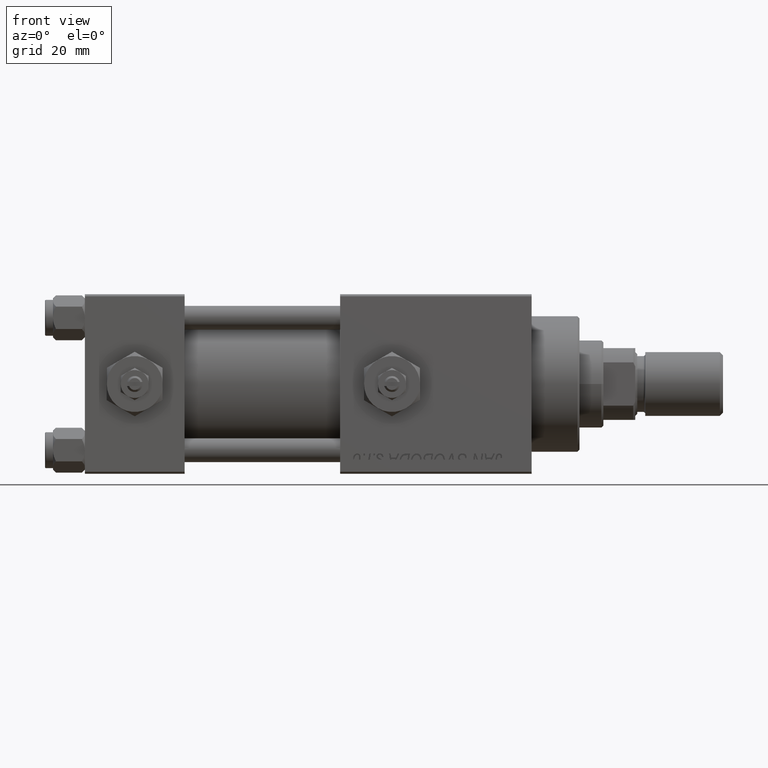
[diagram: clean part render]
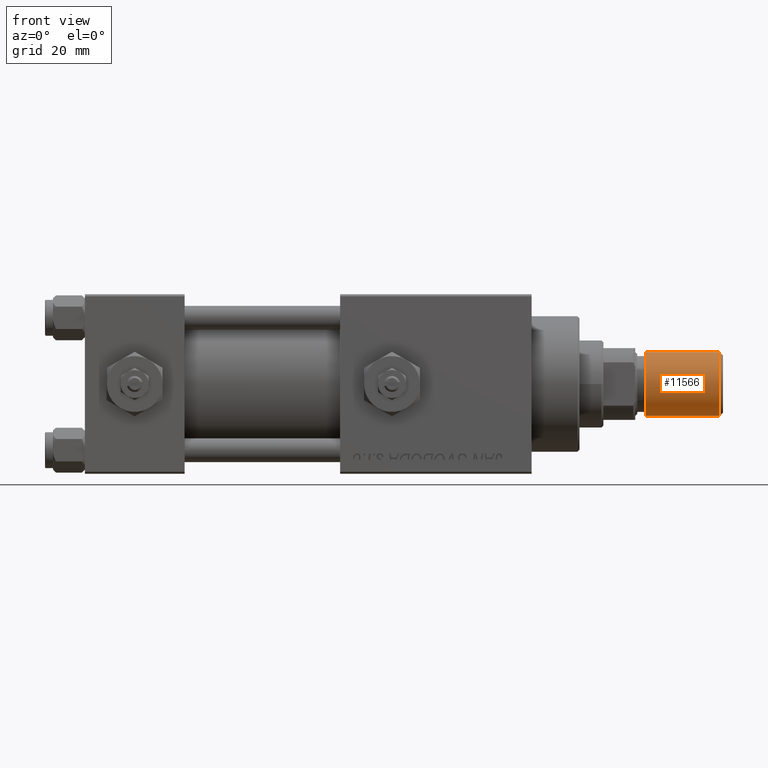
[diagram: same view with one face highlighted and labeled with its STEP entity id]
A machine part, front view. The second image highlights one B-rep face of the part: STEP entity #11566.
In plain terms, the highlighted cylindrical surface (edge-blend (fillet) strip) has radius 8 mm, axis along (1, -0, -0).
Its self-contained STEP definition (entity closure, byte-faithful):
#2888 = AXIS2_PLACEMENT_3D ( 'NONE', #5185, #9425, #37666 ) ;
#4989 = VECTOR ( 'NONE', #18092, 1000.000000000000000 ) ;
#5185 = CARTESIAN_POINT ( 'NONE',  ( 0.000000000000000000, 0.000000000000000000, 19.50000000000000000 ) ) ;
#5329 = LINE ( 'NONE', #10097, #4989 ) ;
#6945 = DIRECTION ( 'NONE',  ( 1.000000000000000000, 0.000000000000000000, 0.000000000000000000 ) ) ;
#8295 = DIRECTION ( 'NONE',  ( 1.000000000000000000, 0.000000000000000000, 0.000000000000000000 ) ) ;
#8388 = FACE_OUTER_BOUND ( 'NONE', #14566, .T. ) ;
#9425 = DIRECTION ( 'NONE',  ( -0.000000000000000000, -0.000000000000000000, -1.000000000000000000 ) ) ;
#10097 = CARTESIAN_POINT ( 'NONE',  ( -8.000000000000000000, 0.000000000000000000, 19.50000000000000000 ) ) ;
#11566 = ADVANCED_FACE ( 'NONE', ( #8388 ), #45125, .T. ) ;
#12390 = CARTESIAN_POINT ( 'NONE',  ( -8.000000000000000000, 0.000000000000000000, 19.50000000000000000 ) ) ;
#12425 = CARTESIAN_POINT ( 'NONE',  ( 8.000000000000000000, 9.797174393178825657E-16, 19.50000000000000000 ) ) ;
#12466 = VERTEX_POINT ( 'NONE', #12390 ) ;
#13705 = CIRCLE ( 'NONE', #51131, 8.000000000000000000 ) ;
#14566 = EDGE_LOOP ( 'NONE', ( #46842, #22595, #25005, #17203 ) ) ;
#17203 = ORIENTED_EDGE ( 'NONE', *, *, #20710, .T. ) ;
#18092 = DIRECTION ( 'NONE',  ( -0.000000000000000000, -0.000000000000000000, -1.000000000000000000 ) ) ;
#18177 = EDGE_CURVE ( 'NONE', #21896, #32057, #23657, .T. ) ;
#19384 = DIRECTION ( 'NONE',  ( -0.000000000000000000, -0.000000000000000000, -1.000000000000000000 ) ) ;
#19512 = CARTESIAN_POINT ( 'NONE',  ( 0.000000000000000000, 0.000000000000000000, 19.50000000000000000 ) ) ;
#20710 = EDGE_CURVE ( 'NONE', #48901, #32057, #48328, .T. ) ;
#21896 = VERTEX_POINT ( 'NONE', #30714 ) ;
#22420 = EDGE_CURVE ( 'NONE', #12466, #48901, #5329, .T. ) ;
#22595 = ORIENTED_EDGE ( 'NONE', *, *, #28425, .F. ) ;
#23657 = LINE ( 'NONE', #12425, #51599 ) ;
#24492 = CARTESIAN_POINT ( 'NONE',  ( 8.000000000000000000, 9.797174393178825657E-16, 0.8000000000000090372 ) ) ;
#25005 = ORIENTED_EDGE ( 'NONE', *, *, #22420, .T. ) ;
#27185 = CARTESIAN_POINT ( 'NONE',  ( 0.000000000000000000, 0.000000000000000000, 0.8000000000000090372 ) ) ;
#28425 = EDGE_CURVE ( 'NONE', #12466, #21896, #13705, .T. ) ;
#30714 = CARTESIAN_POINT ( 'NONE',  ( 8.000000000000000000, 9.797174393178825657E-16, 19.50000000000000000 ) ) ;
#32057 = VERTEX_POINT ( 'NONE', #24492 ) ;
#32148 = AXIS2_PLACEMENT_3D ( 'NONE', #27185, #47680, #6945 ) ;
#32879 = CARTESIAN_POINT ( 'NONE',  ( -8.000000000000000000, 0.000000000000000000, 0.8000000000000090372 ) ) ;
#37666 = DIRECTION ( 'NONE',  ( -1.000000000000000000, 0.000000000000000000, 0.000000000000000000 ) ) ;
#44770 = DIRECTION ( 'NONE',  ( 0.000000000000000000, 0.000000000000000000, 1.000000000000000000 ) ) ;
#45125 = CYLINDRICAL_SURFACE ( 'NONE', #2888, 8.000000000000000000 ) ;
#46842 = ORIENTED_EDGE ( 'NONE', *, *, #18177, .F. ) ;
#47680 = DIRECTION ( 'NONE',  ( -0.000000000000000000, -0.000000000000000000, 1.000000000000000000 ) ) ;
#48328 = CIRCLE ( 'NONE', #32148, 8.000000000000000000 ) ;
#48901 = VERTEX_POINT ( 'NONE', #32879 ) ;
#51131 = AXIS2_PLACEMENT_3D ( 'NONE', #19512, #44770, #8295 ) ;
#51599 = VECTOR ( 'NONE', #19384, 1000.000000000000000 ) ;